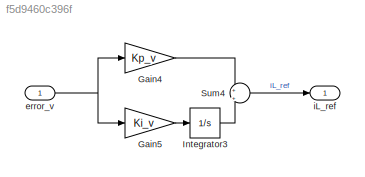
MODEL slx_f5d9460c396f
KIND model
CONFIG AbsTol = auto
CONFIG EnableMultiTasking = off
CONFIG FixedStep = auto
CONFIG MaxStep = auto
CONFIG MinStep = auto
CONFIG RelTol = 1e-3
CONFIG SampleTimeConstraint = Unconstrained
CONFIG Solver = VariableStepAuto
CONFIG SolverName = VariableStepAuto
CONFIG StartTime = 0.0
CONFIG StopTime = 0.2
BLOCK [Gain] Gain4
  Gain = Kp_v
BLOCK [Gain] Gain5
  Gain = Ki_v
BLOCK [Integrator] Integrator3
  Ports = [1, 1]
BLOCK [Sum] Sum4
  Inputs = +|+
  Ports = [2, 1]
BLOCK [Inport] error_v
  OutDataTypeStr = double
  PortDimensions = 1
  SampleTime = [5.0000000000000004e-06,0]
  SamplingMode = Sample based
  SignalType = real
BLOCK [Outport] iL_ref
  OutDataTypeStr = double
  PortDimensions = 1
  SampleTime = 0
  SamplingMode = Sample based
  SignalType = real
LINE Gain4:1 -> Sum4:1
LINE Gain5:1 -> Integrator3:1
LINE Integrator3:1 -> Sum4:2
LINE Sum4:1 -> iL_ref:1
NET error_v:1 -> Gain4:1, Gain5:1
note: NET lines group one-source signal fan-out (src -> all destinations, sorted); 1:1 wires keep LINE
